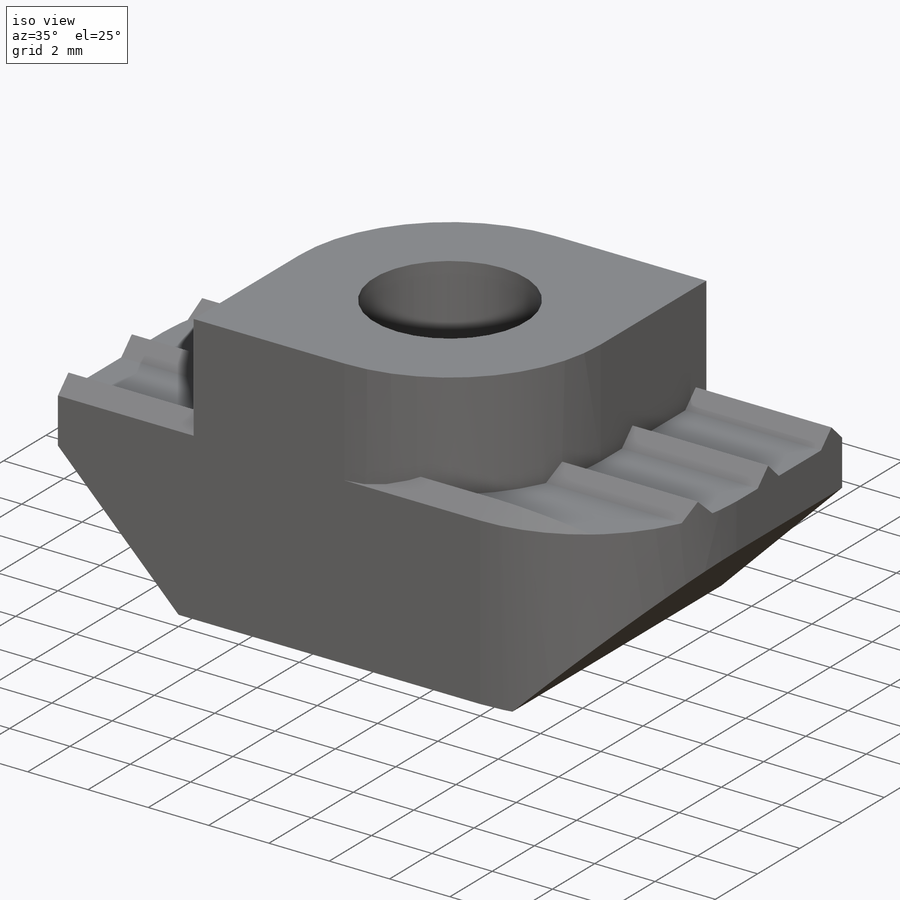
[diagram: iso view]
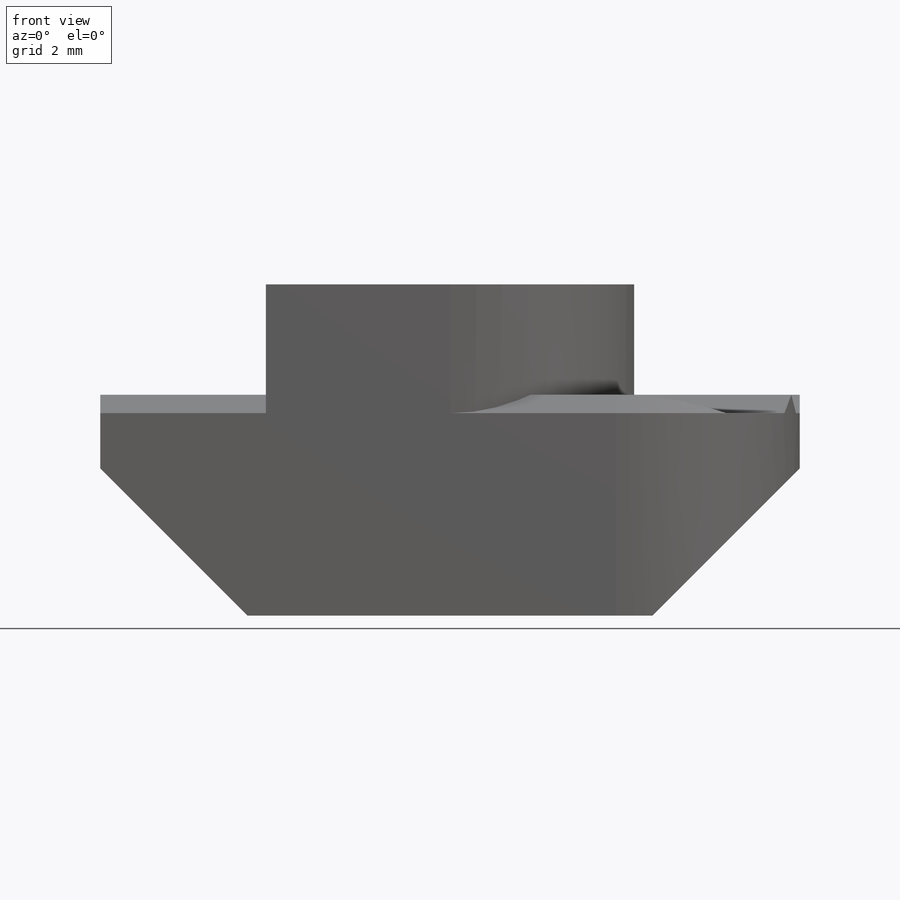
[diagram: front view]
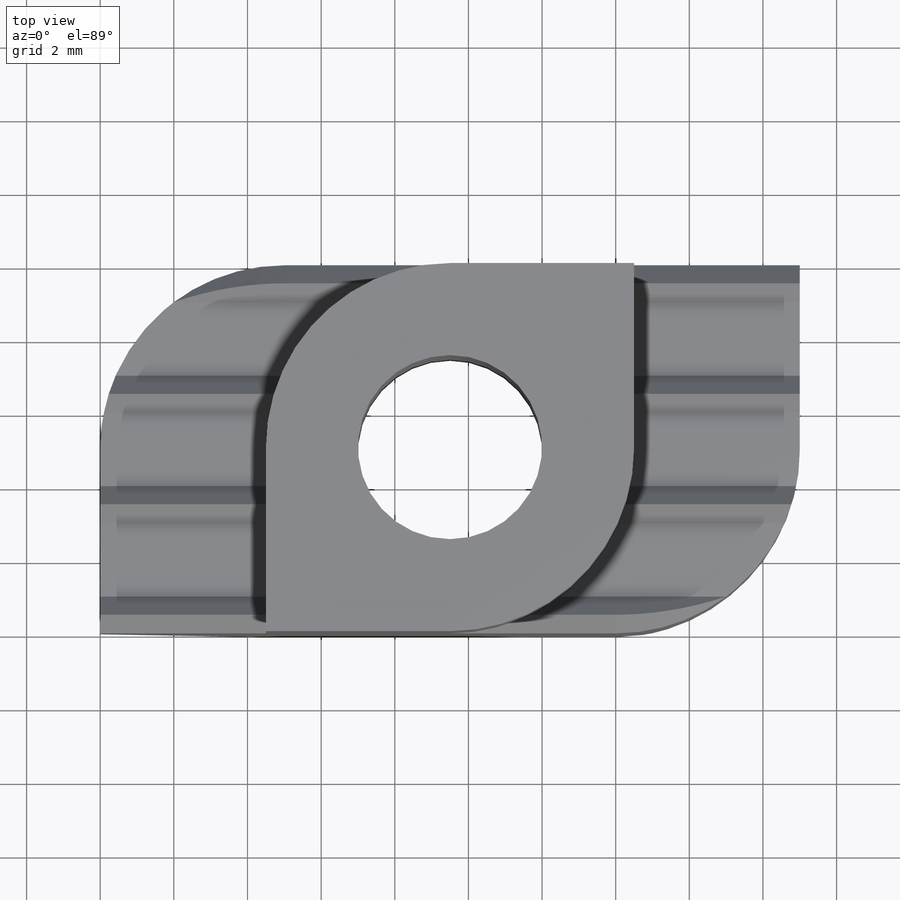
[diagram: top view]
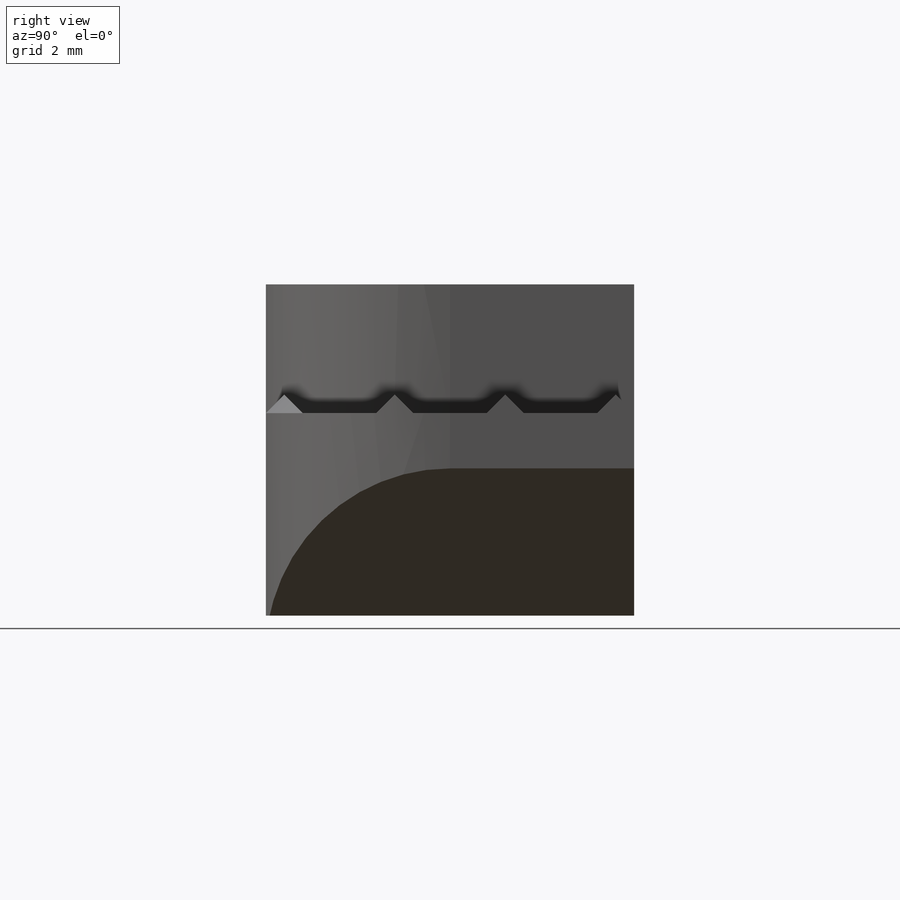
[diagram: right view]
SOLIDWORKS PART (.sldprt)
format: sldprt  version: not decoded by parser v0  size: 943,104 bytes
history: native  units: mm
features: sketch x7, extrude x4, plane x3, material x1, cut_extrude x1, hole x1, thread x1, chamfer x1 (+12 scaffold rows collapsed)
feature tree (31):
  scaffold x12  (default folders/planes/origin — collapsed)
  material  "材质 <未指定>"
  plane  "前视基准面"
  plane  "上视基准面"
  plane  "右视基准面"
  sketch  "草图1"  dims[D1=19.0mm D2=6.0mm D3=4.0mm D4=4.0mm D5=11.0mm D6=4.0mm]
  extrude  "拉伸1"  Depth=10mm
  sketch  "草图2"  dims[c1.D5=5.0mm c1.D9=5.0mm c1.D15=5.0mm c1.D18=5.0mm c1.D1=4.5mm c1.D2=10.0mm c1.D3=5.0mm c1.D4=5.0mm c1.D6=4.5mm c2.D3=4.5mm c2.D6=4.5mm c2.D7=19.0mm c2.D1=4.5mm c3.D6=4.5mm c3.D3=5.0mm c3.D7=5.0mm c3.D8=5.0mm c3.D1=4.5mm c3.D2=5.0mm c3.D10=5.0mm c3.D11=5.0mm c3.D12=5.0mm c3.D13=5.0mm c3.D14=5.0mm c3.D16=5.0mm c3.D17=5.0mm c3.D19=5.0mm c3.D20=5.0mm c3.D21=5.0mm c3.D22=5.0mm]
  extrude  "拉伸2"  Depth=3mm
  cut_extrude  "切除-拉伸3"  [1 undecoded]
  sketch  "草图2<3>"
  sketch  "草图4"  dims[c1.D1=0.7mm c1.D2=0.7mm c1.D3=0.7mm c1.D4=0.7mm c1.D5=2.4mm c1.D6=2.4mm c1.D7=0.7mm c1.D8=2.4mm c1.D9=0.7mm c1.D10=2.4mm c1.D11=0.7mm c1.D12=2.4mm c1.D13=4.5mm c2.D7=~6.617729mm c2.D8=4.5mm c2.D9=~6.617729mm c2.D10=4.5mm c2.D11=~6.617729mm c2.D12=4.5mm c2.D13=~6.763864mm c2.D14=~4.646136mm c2.D15=~6.992796mm c2.D16=~4.875068mm c2.D17=~9.066258mm c2.D18=~6.94853mm c2.D1=1.0mm c2.D2=1.0mm c2.D3=1.0mm c2.D4=1.0mm c2.D5=2.0mm c2.D6=2.0mm c3.D7=~9.066258mm c3.D8=~6.94853mm c3.D9=~9.066258mm c3.D10=~6.94853mm c3.D11=~9.066258mm c3.D12=~6.94853mm c3.D13=~9.066258mm c3.D14=~6.94853mm c3.D15=~9.066258mm c3.D16=~6.94853mm c3.D17=~9.066258mm c3.D18=~6.94853mm]
  extrude  "切除-拉伸1"  Depth=0.5mm
  sketch  "草图6"  dims[c1.D1=0.7mm c1.D2=2.4mm c1.D3=0.7mm c1.D4=2.4mm c1.D5=0.7mm c1.D6=2.4mm c1.D7=~11.874185mm c1.D8=~6.971765mm c1.D9=~9.777488mm c1.D10=~4.875068mm c1.D11=~9.548556mm c1.D12=~4.646136mm c1.D13=~9.402421mm c1.D14=4.5mm c1.D15=~9.402421mm c1.D16=4.5mm c1.D17=~9.402421mm c1.D18=4.5mm c2.D1=1.0mm c2.D2=1.0mm c2.D3=1.0mm c2.D4=1.0mm c2.D5=2.0mm c2.D6=2.0mm c2.D7=~11.874185mm c2.D8=~6.971765mm c2.D9=~11.874185mm c2.D10=~6.971765mm c2.D11=~11.874185mm c2.D12=~6.971765mm c2.D13=~11.874185mm c2.D14=~6.971765mm c2.D15=~11.874185mm c2.D16=~6.971765mm c2.D17=~11.874185mm c2.D18=~6.971765mm]
  extrude  "切除-拉伸2"  Depth=0.5mm
  hole  "M6 螺纹孔1"  [1 undecoded]
  sketch  "3D草图2"  dims[D1=5.0mm D2=5.0mm]
  sketch  "草图8"  dims[hole-wizard template sketch: 59 standard entries collapsed; hole parameters kept: c18.籵謂蹟恇謂郰芛眻噤=5.0mm c18.籵謂蹟恇謂郰芛旮僅=9.0mm]
  thread  "孔螺蚊线2"  Diameter=6mm  [1 undecoded]
  chamfer  "倒角1"  Distance=0.5mm Angle=45deg
decode coverage: 12 of 15 modeling features carry decoded parameters
note: ~ marks probable driven/reference dimensions
note: 3 parameter values undecoded
note: suppression state not decoded; provenance and decode notes live in map.json
